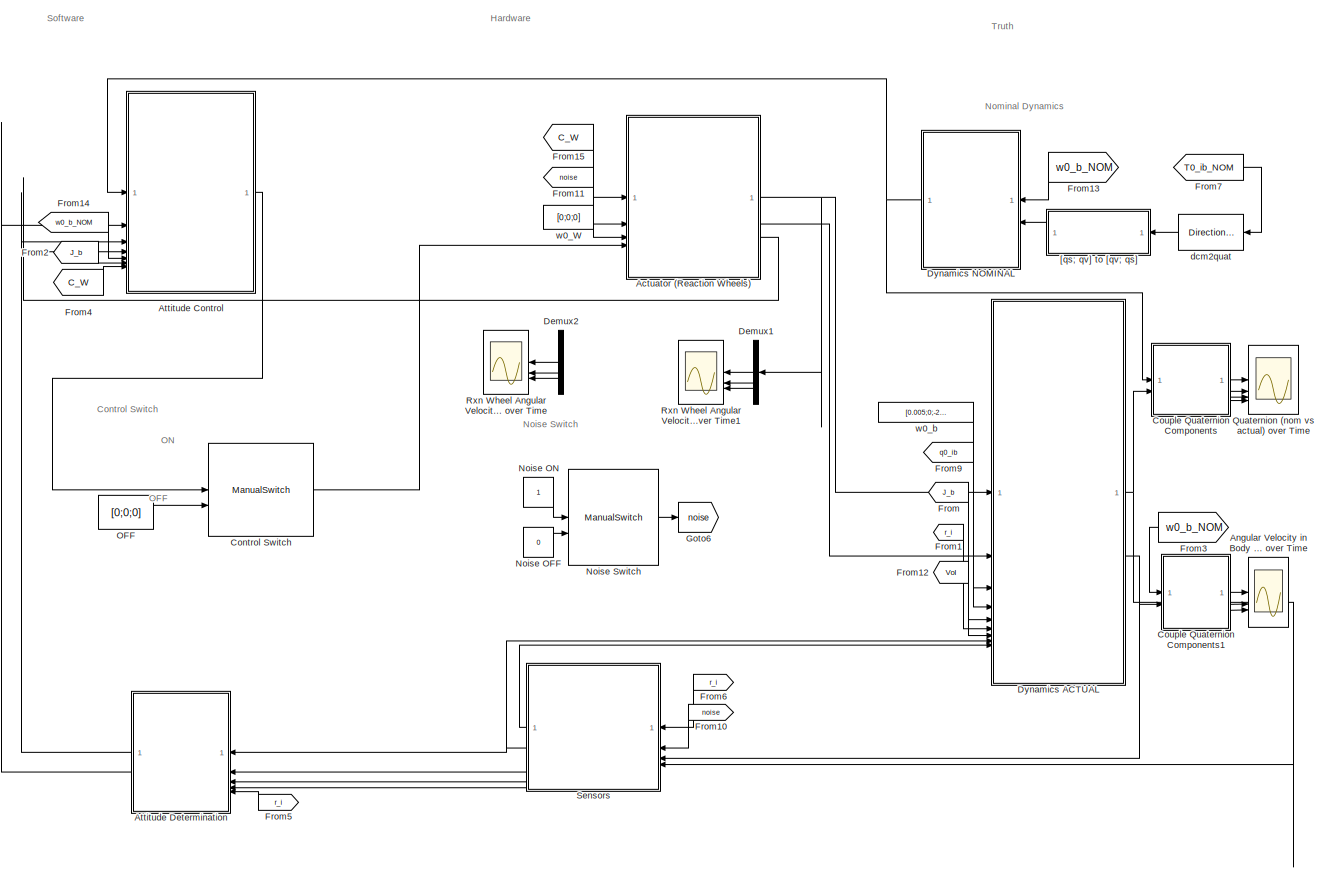
[diagram: root canvas - part 1/2, most of the canvas]
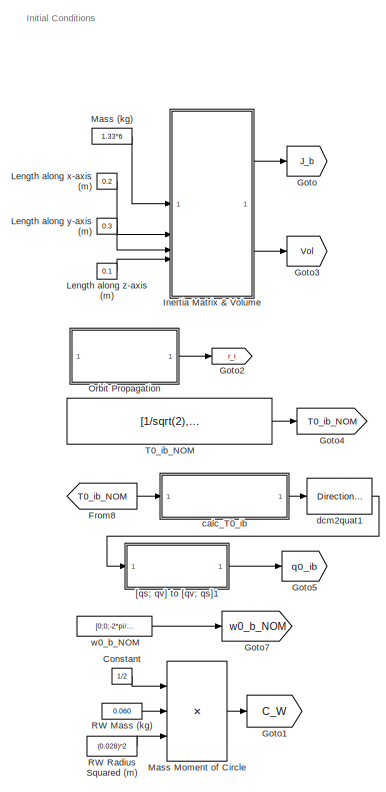
[diagram: root canvas - part 2/2, left side, full height]
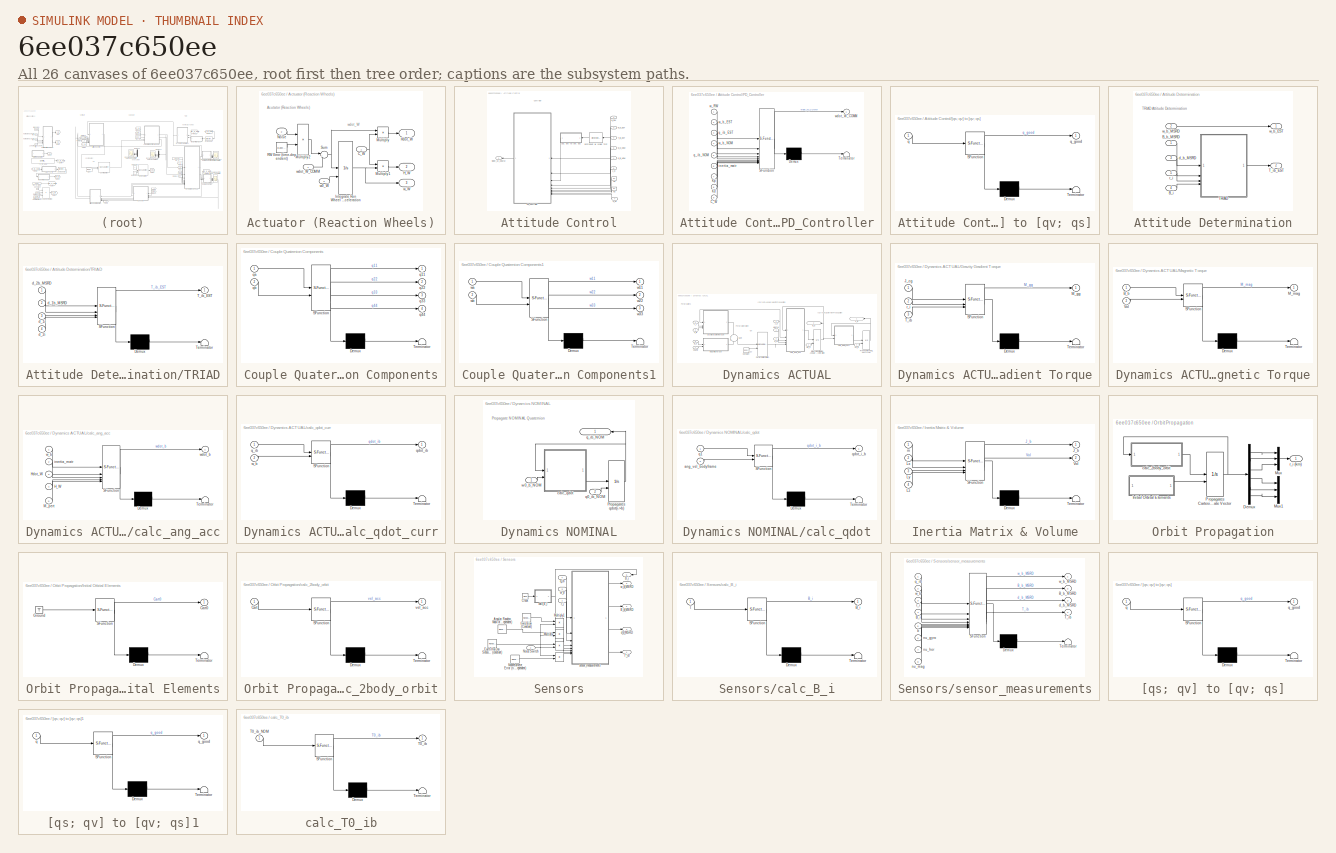
[diagram: thumbnail index - all 26 canvases of the model, root first then tree order]
MODEL slx_6ee037c650ee
KIND model
CONFIG AbsTol = auto
CONFIG EnableMultiTasking = off
CONFIG FixedStep = 100
CONFIG MaxStep = auto
CONFIG MinStep = auto
CONFIG RelTol = 1e-3
CONFIG SampleTimeConstraint = Unconstrained
CONFIG SolverName = VariableStepAuto
CONFIG StartTime = 0.0
CONFIG StopTime = 5370
BLOCK [SubSystem] Actuator (Reaction Wheels)
BLOCK [Inport] Actuator (Reaction Wheels)/C_W
BLOCK [Outport] Actuator (Reaction Wheels)/H_W
  Port = 2
  VectorParamsAs1DForOutWhenUnconnected = off
BLOCK [Outport] Actuator (Reaction Wheels)/Hdot_W
  VectorParamsAs1DForOutWhenUnconnected = off
BLOCK [Integrator] Actuator (Reaction Wheels)/Integrate Rxn Wheel Angular Acceleration
  ContinuousStateAttributes = 'ang_vel'
  InitialConditionSource = external
BLOCK [Product] Actuator (Reaction Wheels)/Multiply
BLOCK [Product] Actuator (Reaction Wheels)/Multiply1
BLOCK [Product] Actuator (Reaction Wheels)/Multiply2
BLOCK [Inport] Actuator (Reaction Wheels)/Noise 
  Port = 2
BLOCK [Reference] Actuator (Reaction Wheels)/RW Error (time-dependent)  REF=simulink/Sources/Band-Limited
White Noise
  SourceBlock = simulink/Sources/Band-Limited\nWhite Noise
  SourceType = Band-Limited White Noise.
BLOCK [Sum] Actuator (Reaction Wheels)/Sum
  Inputs = |++
BLOCK [Inport] Actuator (Reaction Wheels)/w0_W
  Port = 3
BLOCK [Outport] Actuator (Reaction Wheels)/w_W
  Port = 3
  VectorParamsAs1DForOutWhenUnconnected = off
BLOCK [Inport] Actuator (Reaction Wheels)/wdot_W_COMM
  Port = 4
BLOCK [Scope] Angular Velocity in Body Frame over Time
  Floating = off
  NumInputPorts = 3
  ScopeSpecificationString = Simulink.scopes.TimeScopeBlockCfg('CurrentConfiguration', extmgr.ConfigurationSet(extmgr.Configuration('Core','General UI',true),extmgr.Configuration('Core','Source UI',true),extmgr.Configuration('Sources','WiredSimulink',true),extmgr.Configuration('Visuals','Time Domain',true,'SerializedDisplays',{struct('MinYLimReal','-0.00567','MaxYLimReal','0.00619','YLabelReal','\omega_x (rad/s)','MinYLimMag'...<+2963ch>
BLOCK [SubSystem] Attitude Control
BLOCK [Inport] Attitude Control/C_W
  Port = 7
BLOCK [Inport] Attitude Control/J_b
  Port = 6
BLOCK [Constant] Attitude Control/Kd
  Value = .01
BLOCK [Constant] Attitude Control/Kp
  Value = .01
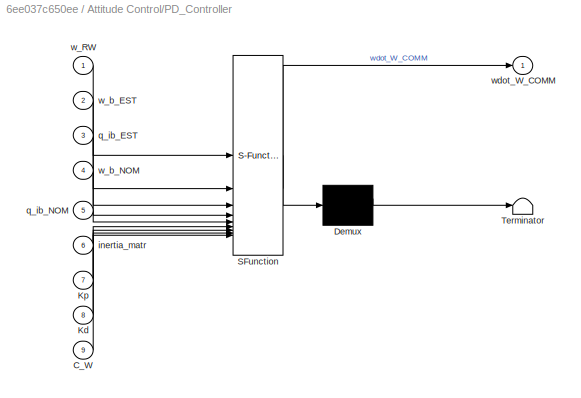
BLOCK [SubSystem] Attitude Control/PD_Controller
  ErrorFcn = Stateflow.Translate.translate
  PermitHierarchicalResolution = ExplicitOnly
  SFBlockType = MATLAB Function
  TreatAsAtomicUnit = on
BLOCK [Demux] Attitude Control/PD_Controller/ Demux 
  Outputs = 1
BLOCK [S-Function] Attitude Control/PD_Controller/ SFunction 
  EnableBusSupport = on
  FunctionName = sf_sfun
  PortCounts = [9 2]
  SFcnIsStateOwnerBlock = off
  SFunctionDeploymentMode = off
  Tag = Stateflow S-Function 5
BLOCK [Terminator] Attitude Control/PD_Controller/ Terminator 
BLOCK [Inport] Attitude Control/PD_Controller/C_W
  Port = 9
BLOCK [Inport] Attitude Control/PD_Controller/Kd
  Port = 8
BLOCK [Inport] Attitude Control/PD_Controller/Kp
  Port = 7
BLOCK [Inport] Attitude Control/PD_Controller/inertia_matr
  Port = 6
BLOCK [Inport] Attitude Control/PD_Controller/q_ib_EST
  Port = 3
BLOCK [Inport] Attitude Control/PD_Controller/q_ib_NOM
  Port = 5
BLOCK [Inport] Attitude Control/PD_Controller/w_RW
BLOCK [Inport] Attitude Control/PD_Controller/w_b_EST
  Port = 2
BLOCK [Inport] Attitude Control/PD_Controller/w_b_NOM
  Port = 4
BLOCK [Outport] Attitude Control/PD_Controller/wdot_W_COMM
  VectorParamsAs1DForOutWhenUnconnected = off
BLOCK [Inport] Attitude Control/T_ib_EST
  Port = 2
BLOCK [SubSystem] Attitude Control/[qs; qv] to [qv; qs]
  ErrorFcn = Stateflow.Translate.translate
  PermitHierarchicalResolution = ExplicitOnly
  SFBlockType = MATLAB Function
  TreatAsAtomicUnit = on
BLOCK [Demux] Attitude Control/[qs; qv] to [qv; qs]/ Demux 
  Outputs = 1
BLOCK [S-Function] Attitude Control/[qs; qv] to [qv; qs]/ SFunction 
  EnableBusSupport = on
  FunctionName = sf_sfun
  PortCounts = [1 2]
  SFcnIsStateOwnerBlock = off
  SFunctionDeploymentMode = off
  Tag = Stateflow S-Function 4
BLOCK [Terminator] Attitude Control/[qs; qv] to [qv; qs]/ Terminator 
BLOCK [Inport] Attitude Control/[qs; qv] to [qv; qs]/q
BLOCK [Outport] Attitude Control/[qs; qv] to [qv; qs]/q_good
  VectorParamsAs1DForOutWhenUnconnected = off
BLOCK [Reference] Attitude Control/dcm2quat w// scalar first  REF=sharedtransform/Direction Cosine Matrix 
to Quaternions
  SourceBlock = sharedtransform/Direction Cosine Matrix \nto Quaternions
  SourceType = DCM2Quaternion
BLOCK [Inport] Attitude Control/q_ib_NOM
BLOCK [Inport] Attitude Control/w_RW
  Port = 4
BLOCK [Inport] Attitude Control/w_b_EST
  Port = 3
BLOCK [Inport] Attitude Control/w_b_NOM
  Port = 5
BLOCK [Outport] Attitude Control/wdot_W_COMM
  VectorParamsAs1DForOutWhenUnconnected = off
BLOCK [SubSystem] Attitude Determination
BLOCK [Inport] Attitude Determination/B_b_MSRD
BLOCK [Inport] Attitude Determination/B_i
  Port = 4
BLOCK [SubSystem] Attitude Determination/TRIAD
  ErrorFcn = Stateflow.Translate.translate
  PermitHierarchicalResolution = ExplicitOnly
  SFBlockType = MATLAB Function
  TreatAsAtomicUnit = on
BLOCK [Demux] Attitude Determination/TRIAD/ Demux 
  Outputs = 1
BLOCK [S-Function] Attitude Determination/TRIAD/ SFunction 
  EnableBusSupport = on
  FunctionName = sf_sfun
  PortCounts = [4 2]
  SFcnIsStateOwnerBlock = off
  SFunctionDeploymentMode = off
  Tag = Stateflow S-Function 8
BLOCK [Terminator] Attitude Determination/TRIAD/ Terminator 
BLOCK [Outport] Attitude Determination/TRIAD/T_ib_EST
  VectorParamsAs1DForOutWhenUnconnected = off
BLOCK [Inport] Attitude Determination/TRIAD/d_1b_MSRD
  Port = 2
BLOCK [Inport] Attitude Determination/TRIAD/d_1i
  Port = 3
BLOCK [Inport] Attitude Determination/TRIAD/d_2b_MSRD
BLOCK [Inport] Attitude Determination/TRIAD/d_2i
  Port = 4
BLOCK [Outport] Attitude Determination/T_ib_EST
  Port = 2
  VectorParamsAs1DForOutWhenUnconnected = off
BLOCK [Inport] Attitude Determination/d_b_MSRD
  Port = 3
BLOCK [Inport] Attitude Determination/r_i
  Port = 5
BLOCK [Outport] Attitude Determination/w_b_EST
  VectorParamsAs1DForOutWhenUnconnected = off
BLOCK [Inport] Attitude Determination/w_b_MSRD
  Port = 2
BLOCK [Constant] Constant
  Value = 1/2
BLOCK [ManualSwitch] Control Switch
BLOCK [SubSystem] Couple Quaternion Components
  ErrorFcn = Stateflow.Translate.translate
  PermitHierarchicalResolution = ExplicitOnly
  SFBlockType = MATLAB Function
  TreatAsAtomicUnit = on
BLOCK [Demux] Couple Quaternion Components/ Demux 
  Outputs = 1
BLOCK [S-Function] Couple Quaternion Components/ SFunction 
  EnableBusSupport = on
  FunctionName = sf_sfun
  PortCounts = [2 5]
  SFcnIsStateOwnerBlock = off
  SFunctionDeploymentMode = off
  Tag = Stateflow S-Function 17
BLOCK [Terminator] Couple Quaternion Components/ Terminator 
BLOCK [Outport] Couple Quaternion Components/q11
  VectorParamsAs1DForOutWhenUnconnected = off
BLOCK [Outport] Couple Quaternion Components/q22
  Port = 2
  VectorParamsAs1DForOutWhenUnconnected = off
BLOCK [Outport] Couple Quaternion Components/q33
  Port = 3
  VectorParamsAs1DForOutWhenUnconnected = off
BLOCK [Outport] Couple Quaternion Components/q44
  Port = 4
  VectorParamsAs1DForOutWhenUnconnected = off
BLOCK [Inport] Couple Quaternion Components/qa
BLOCK [Inport] Couple Quaternion Components/qb
  Port = 2
BLOCK [SubSystem] Couple Quaternion Components1
  ErrorFcn = Stateflow.Translate.translate
  PermitHierarchicalResolution = ExplicitOnly
  SFBlockType = MATLAB Function
  TreatAsAtomicUnit = on
BLOCK [Demux] Couple Quaternion Components1/ Demux 
  Outputs = 1
BLOCK [S-Function] Couple Quaternion Components1/ SFunction 
  EnableBusSupport = on
  FunctionName = sf_sfun
  PortCounts = [2 4]
  SFcnIsStateOwnerBlock = off
  SFunctionDeploymentMode = off
  Tag = Stateflow S-Function 18
BLOCK [Terminator] Couple Quaternion Components1/ Terminator 
BLOCK [Outport] Couple Quaternion Components1/w11
  VectorParamsAs1DForOutWhenUnconnected = off
BLOCK [Outport] Couple Quaternion Components1/w22
  Port = 2
  VectorParamsAs1DForOutWhenUnconnected = off
BLOCK [Outport] Couple Quaternion Components1/w33
  Port = 3
  VectorParamsAs1DForOutWhenUnconnected = off
BLOCK [Inport] Couple Quaternion Components1/wa
BLOCK [Inport] Couple Quaternion Components1/wb
  Port = 2
BLOCK [Demux] Demux1
  NameLocation = top
  Outputs = 3
BLOCK [Demux] Demux2
  NameLocation = top
  Outputs = 3
BLOCK [SubSystem] Dynamics ACTUAL
BLOCK [Inport] Dynamics ACTUAL/B_b
  Port = 8
BLOCK [Constant] Dynamics ACTUAL/Constant
  Value = [0;0;0]
BLOCK [SubSystem] Dynamics ACTUAL/Gravity Gradient Torque
  ErrorFcn = Stateflow.Translate.translate
  PermitHierarchicalResolution = ExplicitOnly
  SFBlockType = MATLAB Function
  TreatAsAtomicUnit = on
BLOCK [Demux] Dynamics ACTUAL/Gravity Gradient Torque/ Demux 
  Outputs = 1
BLOCK [S-Function] Dynamics ACTUAL/Gravity Gradient Torque/ SFunction 
  EnableBusSupport = on
  FunctionName = sf_sfun
  PortCounts = [3 2]
  SFcnIsStateOwnerBlock = off
  SFunctionDeploymentMode = off
  Tag = Stateflow S-Function 14
BLOCK [Terminator] Dynamics ACTUAL/Gravity Gradient Torque/ Terminator 
BLOCK [Inport] Dynamics ACTUAL/Gravity Gradient Torque/J_cg
BLOCK [Outport] Dynamics ACTUAL/Gravity Gradient Torque/M_gg
  VectorParamsAs1DForOutWhenUnconnected = off
BLOCK [Inport] Dynamics ACTUAL/Gravity Gradient Torque/T_ib
  Port = 3
BLOCK [Inport] Dynamics ACTUAL/Gravity Gradient Torque/r_i
  Port = 2
BLOCK [Inport] Dynamics ACTUAL/H_W
  Port = 2
BLOCK [Inport] Dynamics ACTUAL/Hdot_W
BLOCK [Integrator] Dynamics ACTUAL/Integrate Estimated Angular Acceleration
  ContinuousStateAttributes = 'ang_vel'
  InitialConditionSource = external
BLOCK [Inport] Dynamics ACTUAL/J_b
  Port = 5
BLOCK [SubSystem] Dynamics ACTUAL/Magnetic Torque
  ErrorFcn = Stateflow.Translate.translate
  PermitHierarchicalResolution = ExplicitOnly
  SFBlockType = MATLAB Function
  TreatAsAtomicUnit = on
BLOCK [Demux] Dynamics ACTUAL/Magnetic Torque/ Demux 
  Outputs = 1
BLOCK [S-Function] Dynamics ACTUAL/Magnetic Torque/ SFunction 
  EnableBusSupport = on
  FunctionName = sf_sfun
  PortCounts = [2 2]
  SFcnIsStateOwnerBlock = off
  SFunctionDeploymentMode = off
  Tag = Stateflow S-Function 15
BLOCK [Terminator] Dynamics ACTUAL/Magnetic Torque/ Terminator 
BLOCK [Inport] Dynamics ACTUAL/Magnetic Torque/B_b
BLOCK [Outport] Dynamics ACTUAL/Magnetic Torque/M_mag
  VectorParamsAs1DForOutWhenUnconnected = off
BLOCK [Inport] Dynamics ACTUAL/Magnetic Torque/Vol
  Port = 2
BLOCK [ManualSwitch] Dynamics ACTUAL/Perturbation Switch
BLOCK [Integrator] Dynamics ACTUAL/Propagates qdot_curr (i->b)
  ContinuousStateAttributes = 'qdot_curr'
  InitialConditionSource = external
BLOCK [Sum] Dynamics ACTUAL/Sum
  Inputs = +||+
BLOCK [Inport] Dynamics ACTUAL/T_ib
  Port = 9
BLOCK [Inport] Dynamics ACTUAL/Volume
  Port = 7
BLOCK [SubSystem] Dynamics ACTUAL/calc_ang_acc
  ErrorFcn = Stateflow.Translate.translate
  PermitHierarchicalResolution = ExplicitOnly
  SFBlockType = MATLAB Function
  TreatAsAtomicUnit = on
BLOCK [Demux] Dynamics ACTUAL/calc_ang_acc/ Demux 
  Outputs = 1
BLOCK [S-Function] Dynamics ACTUAL/calc_ang_acc/ SFunction 
  EnableBusSupport = on
  FunctionName = sf_sfun
  PortCounts = [5 2]
  SFcnIsStateOwnerBlock = off
  SFunctionDeploymentMode = off
  Tag = Stateflow S-Function 1
BLOCK [Terminator] Dynamics ACTUAL/calc_ang_acc/ Terminator 
BLOCK [Inport] Dynamics ACTUAL/calc_ang_acc/H_W
  Port = 4
BLOCK [Inport] Dynamics ACTUAL/calc_ang_acc/Hdot_W
  Port = 3
BLOCK [Inport] Dynamics ACTUAL/calc_ang_acc/M_pert
  Port = 5
BLOCK [Inport] Dynamics ACTUAL/calc_ang_acc/inertia_matr
  Port = 2
BLOCK [Inport] Dynamics ACTUAL/calc_ang_acc/w_b
BLOCK [Outport] Dynamics ACTUAL/calc_ang_acc/wdot_b
  VectorParamsAs1DForOutWhenUnconnected = off
BLOCK [SubSystem] Dynamics ACTUAL/calc_qdot_curr
  ErrorFcn = Stateflow.Translate.translate
  PermitHierarchicalResolution = ExplicitOnly
  SFBlockType = MATLAB Function
  TreatAsAtomicUnit = on
BLOCK [Demux] Dynamics ACTUAL/calc_qdot_curr/ Demux 
  Outputs = 1
BLOCK [S-Function] Dynamics ACTUAL/calc_qdot_curr/ SFunction 
  EnableBusSupport = on
  FunctionName = sf_sfun
  PortCounts = [2 2]
  SFcnIsStateOwnerBlock = off
  SFunctionDeploymentMode = off
  Tag = Stateflow S-Function 2
BLOCK [Terminator] Dynamics ACTUAL/calc_qdot_curr/ Terminator 
BLOCK [Inport] Dynamics ACTUAL/calc_qdot_curr/q_ib
BLOCK [Outport] Dynamics ACTUAL/calc_qdot_curr/qdot_ib
  VectorParamsAs1DForOutWhenUnconnected = off
BLOCK [Inport] Dynamics ACTUAL/calc_qdot_curr/w_b
  Port = 2
BLOCK [Inport] Dynamics ACTUAL/q0_ib
  Port = 4
BLOCK [Outport] Dynamics ACTUAL/q_ib
  VectorParamsAs1DForOutWhenUnconnected = off
BLOCK [Inport] Dynamics ACTUAL/r_i
  Port = 6
BLOCK [Inport] Dynamics ACTUAL/w0_b
  Port = 3
BLOCK [Outport] Dynamics ACTUAL/w_b
  Port = 2
  VectorParamsAs1DForOutWhenUnconnected = off
BLOCK [SubSystem] Dynamics NOMINAL
BLOCK [Integrator] Dynamics NOMINAL/Propagates qdot(i->b)
  ContinuousStateAttributes = 'qdot_curr'
  InitialConditionSource = external
BLOCK [SubSystem] Dynamics NOMINAL/calc_qdot
  ErrorFcn = Stateflow.Translate.translate
  PermitHierarchicalResolution = ExplicitOnly
  SFBlockType = MATLAB Function
  TreatAsAtomicUnit = on
BLOCK [Demux] Dynamics NOMINAL/calc_qdot/ Demux 
  Outputs = 1
BLOCK [S-Function] Dynamics NOMINAL/calc_qdot/ SFunction 
  EnableBusSupport = on
  FunctionName = sf_sfun
  PortCounts = [2 2]
  SFcnIsStateOwnerBlock = off
  SFunctionDeploymentMode = off
  Tag = Stateflow S-Function 12
BLOCK [Terminator] Dynamics NOMINAL/calc_qdot/ Terminator 
BLOCK [Inport] Dynamics NOMINAL/calc_qdot/ang_vel_bodyframe
  Port = 2
BLOCK [Inport] Dynamics NOMINAL/calc_qdot/q1
BLOCK [Outport] Dynamics NOMINAL/calc_qdot/qdot_i_b
  VectorParamsAs1DForOutWhenUnconnected = off
BLOCK [Inport] Dynamics NOMINAL/q0_ib_NOM
  Port = 2
BLOCK [Outport] Dynamics NOMINAL/q_ib_NOM
  VectorParamsAs1DForOutWhenUnconnected = off
BLOCK [Inport] Dynamics NOMINAL/w0_b_NOM
BLOCK [From] From
  GotoTag = J_b
BLOCK [From] From1
  GotoTag = r_i
BLOCK [From] From10
  GotoTag = noise
BLOCK [From] From11
  GotoTag = noise
BLOCK [From] From12
  GotoTag = Vol
BLOCK [From] From13
  GotoTag = w0_b_NOM
BLOCK [From] From14
  GotoTag = w0_b_NOM
BLOCK [From] From15
  GotoTag = C_W
BLOCK [From] From2
  GotoTag = J_b
BLOCK [From] From3
  GotoTag = w0_b_NOM
BLOCK [From] From4
  GotoTag = C_W
BLOCK [From] From5
  GotoTag = r_i
BLOCK [From] From6
  GotoTag = r_i
BLOCK [From] From7
  GotoTag = T0_ib_NOM
BLOCK [From] From8
  GotoTag = T0_ib_NOM
BLOCK [From] From9
  GotoTag = q0_ib
BLOCK [Goto] Goto
  GotoTag = J_b
BLOCK [Goto] Goto1
  GotoTag = C_W
BLOCK [Goto] Goto2
  GotoTag = r_i
BLOCK [Goto] Goto3
  GotoTag = Vol
BLOCK [Goto] Goto4
  GotoTag = T0_ib_NOM
BLOCK [Goto] Goto5
  GotoTag = q0_ib
BLOCK [Goto] Goto6
  GotoTag = noise
BLOCK [Goto] Goto7
  GotoTag = w0_b_NOM
BLOCK [SubSystem] Inertia Matrix & Volume
  ErrorFcn = Stateflow.Translate.translate
  PermitHierarchicalResolution = ExplicitOnly
  SFBlockType = MATLAB Function
  TreatAsAtomicUnit = on
BLOCK [Demux] Inertia Matrix & Volume/ Demux 
  Outputs = 1
BLOCK [S-Function] Inertia Matrix & Volume/ SFunction 
  EnableBusSupport = on
  FunctionName = sf_sfun
  PortCounts = [4 3]
  SFcnIsStateOwnerBlock = off
  SFunctionDeploymentMode = off
  Tag = Stateflow S-Function 16
BLOCK [Terminator] Inertia Matrix & Volume/ Terminator 
BLOCK [Outport] Inertia Matrix & Volume/J_b
  VectorParamsAs1DForOutWhenUnconnected = off
BLOCK [Inport] Inertia Matrix & Volume/Lx
  Port = 2
BLOCK [Inport] Inertia Matrix & Volume/Ly
  Port = 3
BLOCK [Inport] Inertia Matrix & Volume/Lz
  Port = 4
BLOCK [Outport] Inertia Matrix & Volume/Vol
  Port = 2
  VectorParamsAs1DForOutWhenUnconnected = off
BLOCK [Inport] Inertia Matrix & Volume/m
BLOCK [Constant] Length along x-axis (m)
  Value = 0.2
BLOCK [Constant] Length along y-axis (m)
  Value = 0.3
BLOCK [Constant] Length along z-axis (m)
  Value = 0.1
BLOCK [Constant] Mass (kg)
  Value = 1.33*6
BLOCK [Product] Mass Moment of Circle
  Inputs = 3
BLOCK [Constant] Noise OFF
  Value = 0
BLOCK [Constant] Noise ON
BLOCK [ManualSwitch] Noise Switch
BLOCK [Constant] OFF
  Value = [0;0;0]
BLOCK [SubSystem] Orbit Propagation
BLOCK [Demux] Orbit Propagation/Demux
  Outputs = 6
BLOCK [SubSystem] Orbit Propagation/Initial Orbital Elements
  ErrorFcn = Stateflow.Translate.translate
  PermitHierarchicalResolution = ExplicitOnly
  SFBlockType = MATLAB Function
  TreatAsAtomicUnit = on
BLOCK [Demux] Orbit Propagation/Initial Orbital Elements/ Demux 
  Outputs = 1
BLOCK [Ground] Orbit Propagation/Initial Orbital Elements/ Ground 
BLOCK [S-Function] Orbit Propagation/Initial Orbital Elements/ SFunction 
  EnableBusSupport = on
  FunctionName = sf_sfun
  PortCounts = [1 2]
  SFcnIsStateOwnerBlock = off
  SFunctionDeploymentMode = off
  Tag = Stateflow S-Function 3
BLOCK [Terminator] Orbit Propagation/Initial Orbital Elements/ Terminator 
BLOCK [Outport] Orbit Propagation/Initial Orbital Elements/Cart0
  VectorParamsAs1DForOutWhenUnconnected = off
BLOCK [Mux] Orbit Propagation/Mux
  DisplayOption = bar
  Inputs = 3
BLOCK [Mux] Orbit Propagation/Mux1
  DisplayOption = bar
  Inputs = 3
BLOCK [Integrator] Orbit Propagation/Propagates Cartesian State Vector
  ContinuousStateAttributes = 'qdot_curr'
  InitialConditionSource = external
BLOCK [SubSystem] Orbit Propagation/calc_2body_orbit
  ErrorFcn = Stateflow.Translate.translate
  PermitHierarchicalResolution = ExplicitOnly
  SFBlockType = MATLAB Function
  TreatAsAtomicUnit = on
BLOCK [Demux] Orbit Propagation/calc_2body_orbit/ Demux 
  Outputs = 1
BLOCK [S-Function] Orbit Propagation/calc_2body_orbit/ SFunction 
  EnableBusSupport = on
  FunctionName = sf_sfun
  PortCounts = [1 2]
  SFcnIsStateOwnerBlock = off
  SFunctionDeploymentMode = off
  Tag = Stateflow S-Function 10
BLOCK [Terminator] Orbit Propagation/calc_2body_orbit/ Terminator 
BLOCK [Inport] Orbit Propagation/calc_2body_orbit/Cart
BLOCK [Outport] Orbit Propagation/calc_2body_orbit/vel_acc
  VectorParamsAs1DForOutWhenUnconnected = off
BLOCK [Outport] Orbit Propagation/r_i (km)
  VectorParamsAs1DForOutWhenUnconnected = off
BLOCK [Scope] Quaternion (nom vs actual) over Time
  Floating = off
  NumInputPorts = 4
  ScopeSpecificationString = Simulink.scopes.TimeScopeBlockCfg('CurrentConfiguration', extmgr.ConfigurationSet(extmgr.Configuration('Core','General UI',true),extmgr.Configuration('Core','Source UI',true),extmgr.Configuration('Sources','WiredSimulink',true,'DataLoggingVariableName','ScopeData1'),extmgr.Configuration('Visuals','Time Domain',true,'SerializedDisplays',{struct('MinYLimReal','-0.49195','MaxYLimReal','0.49311','YLab...<+3752ch>
BLOCK [Constant] RW Mass (kg)
  Value = 0.060
BLOCK [Constant] RW Radius Squared (m)
  Value = (0.028)^2
BLOCK [Scope] Rxn Wheel Angular Velocity in Body Frame over Time
  Floating = off
  NameLocation = top
  NumInputPorts = 3
  ScopeSpecificationString = Simulink.scopes.TimeScopeBlockCfg('CurrentConfiguration', extmgr.ConfigurationSet(extmgr.Configuration('Core','General UI',true),extmgr.Configuration('Core','Source UI',true),extmgr.Configuration('Sources','WiredSimulink',true,'DataLoggingVariableName','ScopeData1'),extmgr.Configuration('Visuals','Time Domain',true,'SerializedDisplays',{struct('MinYLimReal','-29.58174','MaxYLimReal','32.89737','YL...<+2798ch>
BLOCK [Scope] Rxn Wheel Angular Velocity in Body Frame over Time1
  Floating = off
  NameLocation = top
  NumInputPorts = 3
  ScopeSpecificationString = Simulink.scopes.TimeScopeBlockCfg('CurrentConfiguration', extmgr.ConfigurationSet(extmgr.Configuration('Core','General UI',true),extmgr.Configuration('Core','Source UI',true),extmgr.Configuration('Sources','WiredSimulink',true,'DataLoggingVariableName','ScopeData1'),extmgr.Configuration('Visuals','Time Domain',true,'SerializedDisplays',{struct('MinYLimReal','-0.000043','MaxYLimReal','0.000047','YL...<+3102ch>
BLOCK [SubSystem] Sensors
BLOCK [Product] Sensors/ 
BLOCK [Product] Sensors/  
BLOCK [Reference] Sensors/Angular Random Walk of gyro (time-dependent)  REF=simulink/Sources/Band-Limited
White Noise
  SourceBlock = simulink/Sources/Band-Limited\nWhite Noise
  SourceType = Band-Limited White Noise.
BLOCK [Outport] Sensors/B_b_MSRD
  Port = 2
  VectorParamsAs1DForOutWhenUnconnected = off
BLOCK [Outport] Sensors/B_i
  Port = 5
  VectorParamsAs1DForOutWhenUnconnected = off
BLOCK [Clock] Sensors/Clock
BLOCK [RandomNumber] Sensors/Earth Horizon Sensor error (constant)
  Seed = 785
  Variance = (0.25*pi/180)^2
BLOCK [RandomNumber] Sensors/Gyro Bias (Constant)
  Variance = (.01*pi/180)^2*[1;1;1]
BLOCK [Reference] Sensors/Magnetometer Error (time-dependent)  REF=simulink/Sources/Band-Limited
White Noise
  SourceBlock = simulink/Sources/Band-Limited\nWhite Noise
  SourceType = Band-Limited White Noise.
BLOCK [Product] Sensors/Multiply
BLOCK [Product] Sensors/Multiply1
BLOCK [Inport] Sensors/Noise Switch
  Port = 2
BLOCK [Outport] Sensors/T_ib
  VectorParamsAs1DForOutWhenUnconnected = off
BLOCK [SubSystem] Sensors/calc_B_i
  ErrorFcn = Stateflow.Translate.translate
  PermitHierarchicalResolution = ExplicitOnly
  SFBlockType = MATLAB Function
  TreatAsAtomicUnit = on
BLOCK [Demux] Sensors/calc_B_i/ Demux 
  Outputs = 1
BLOCK [S-Function] Sensors/calc_B_i/ SFunction 
  EnableBusSupport = on
  FunctionName = sf_sfun
  PortCounts = [1 2]
  SFcnIsStateOwnerBlock = off
  SFunctionDeploymentMode = off
  Tag = Stateflow S-Function 7
BLOCK [Terminator] Sensors/calc_B_i/ Terminator 
BLOCK [Outport] Sensors/calc_B_i/B_i
  VectorParamsAs1DForOutWhenUnconnected = off
BLOCK [Inport] Sensors/calc_B_i/t
BLOCK [Outport] Sensors/d_b_MSRD
  Port = 4
  VectorParamsAs1DForOutWhenUnconnected = off
BLOCK [Inport] Sensors/q_ib
  Port = 4
BLOCK [Inport] Sensors/r_i
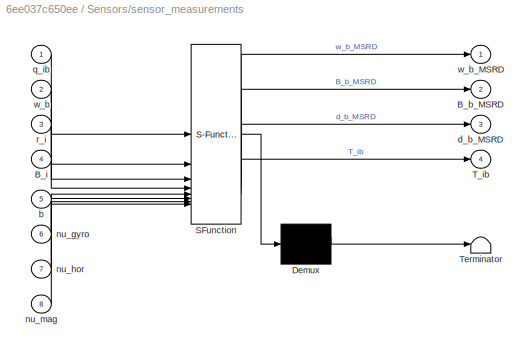
BLOCK [SubSystem] Sensors/sensor_measurements
  ErrorFcn = Stateflow.Translate.translate
  PermitHierarchicalResolution = ExplicitOnly
  SFBlockType = MATLAB Function
  TreatAsAtomicUnit = on
BLOCK [Demux] Sensors/sensor_measurements/ Demux 
  Outputs = 1
BLOCK [S-Function] Sensors/sensor_measurements/ SFunction 
  EnableBusSupport = on
  FunctionName = sf_sfun
  PortCounts = [8 5]
  SFcnIsStateOwnerBlock = off
  SFunctionDeploymentMode = off
  Tag = Stateflow S-Function 6
BLOCK [Terminator] Sensors/sensor_measurements/ Terminator 
BLOCK [Outport] Sensors/sensor_measurements/B_b_MSRD
  Port = 2
  VectorParamsAs1DForOutWhenUnconnected = off
BLOCK [Inport] Sensors/sensor_measurements/B_i
  Port = 4
BLOCK [Outport] Sensors/sensor_measurements/T_ib
  Port = 4
  VectorParamsAs1DForOutWhenUnconnected = off
BLOCK [Inport] Sensors/sensor_measurements/b
  Port = 5
BLOCK [Outport] Sensors/sensor_measurements/d_b_MSRD
  Port = 3
  VectorParamsAs1DForOutWhenUnconnected = off
BLOCK [Inport] Sensors/sensor_measurements/nu_gyro
  Port = 6
BLOCK [Inport] Sensors/sensor_measurements/nu_hor
  Port = 7
BLOCK [Inport] Sensors/sensor_measurements/nu_mag
  Port = 8
BLOCK [Inport] Sensors/sensor_measurements/q_ib
BLOCK [Inport] Sensors/sensor_measurements/r_i
  Port = 3
BLOCK [Inport] Sensors/sensor_measurements/w_b
  Port = 2
BLOCK [Outport] Sensors/sensor_measurements/w_b_MSRD
  VectorParamsAs1DForOutWhenUnconnected = off
BLOCK [Inport] Sensors/w_b
  Port = 3
BLOCK [Outport] Sensors/w_b_MSRD
  Port = 3
  VectorParamsAs1DForOutWhenUnconnected = off
BLOCK [Constant] T0_ib_NOM
  Value = [1/sqrt(2), 0, -1/sqrt(2); 0, 1, 0; 1/sqrt(2), 0, 1/sqrt(2)]
BLOCK [SubSystem] [qs; qv] to [qv; qs]
  ErrorFcn = Stateflow.Translate.translate
  PermitHierarchicalResolution = ExplicitOnly
  SFBlockType = MATLAB Function
  TreatAsAtomicUnit = on
BLOCK [Demux] [qs; qv] to [qv; qs]/ Demux 
  Outputs = 1
BLOCK [S-Function] [qs; qv] to [qv; qs]/ SFunction 
  EnableBusSupport = on
  FunctionName = sf_sfun
  PortCounts = [1 2]
  SFcnIsStateOwnerBlock = off
  SFunctionDeploymentMode = off
  Tag = Stateflow S-Function 9
BLOCK [Terminator] [qs; qv] to [qv; qs]/ Terminator 
BLOCK [Inport] [qs; qv] to [qv; qs]/q
BLOCK [Outport] [qs; qv] to [qv; qs]/q_good
  VectorParamsAs1DForOutWhenUnconnected = off
BLOCK [SubSystem] [qs; qv] to [qv; qs]1
  ErrorFcn = Stateflow.Translate.translate
  PermitHierarchicalResolution = ExplicitOnly
  SFBlockType = MATLAB Function
  TreatAsAtomicUnit = on
BLOCK [Demux] [qs; qv] to [qv; qs]1/ Demux 
  Outputs = 1
BLOCK [S-Function] [qs; qv] to [qv; qs]1/ SFunction 
  EnableBusSupport = on
  FunctionName = sf_sfun
  PortCounts = [1 2]
  SFcnIsStateOwnerBlock = off
  SFunctionDeploymentMode = off
  Tag = Stateflow S-Function 13
BLOCK [Terminator] [qs; qv] to [qv; qs]1/ Terminator 
BLOCK [Inport] [qs; qv] to [qv; qs]1/q
BLOCK [Outport] [qs; qv] to [qv; qs]1/q_good
  VectorParamsAs1DForOutWhenUnconnected = off
BLOCK [SubSystem] calc_T0_ib
  ErrorFcn = Stateflow.Translate.translate
  PermitHierarchicalResolution = ExplicitOnly
  SFBlockType = MATLAB Function
  TreatAsAtomicUnit = on
BLOCK [Demux] calc_T0_ib/ Demux 
  Outputs = 1
BLOCK [S-Function] calc_T0_ib/ SFunction 
  EnableBusSupport = on
  FunctionName = sf_sfun
  PortCounts = [1 2]
  SFcnIsStateOwnerBlock = off
  SFunctionDeploymentMode = off
  Tag = Stateflow S-Function 11
BLOCK [Terminator] calc_T0_ib/ Terminator 
BLOCK [Outport] calc_T0_ib/T0_ib
  VectorParamsAs1DForOutWhenUnconnected = off
BLOCK [Inport] calc_T0_ib/T0_ib_NOM
BLOCK [Reference] dcm2quat  REF=sharedtransform/Direction Cosine Matrix 
to Quaternions
  SourceBlock = sharedtransform/Direction Cosine Matrix \nto Quaternions
  SourceType = DCM2Quaternion
BLOCK [Reference] dcm2quat1  REF=sharedtransform/Direction Cosine Matrix 
to Quaternions
  SourceBlock = sharedtransform/Direction Cosine Matrix \nto Quaternions
  SourceType = DCM2Quaternion
BLOCK [Constant] w0_W
  Value = [0;0;0]
BLOCK [Constant] w0_b
  Value = [0.005;0;-2*pi/5370]
BLOCK [Constant] w0_b_NOM
  Value = [0;0;-2*pi/5370]
ANNOTATION (root): OFF
ANNOTATION (root): ON
ANNOTATION (root): Control Switch
ANNOTATION (root): Noise Switch
ANNOTATION (root): Nominal Dynamics
ANNOTATION (root): Hardware
ANNOTATION (root): Initial Conditions
ANNOTATION (root): Software
ANNOTATION (root): Truth
ANNOTATION Actuator (Reaction Wheels): wdot_W
ANNOTATION Actuator (Reaction Wheels): Acutator (Reaction Wheels)
ANNOTATION Attitude Control: Controller
ANNOTATION Attitude Determination: TRIAD Attitude Determination
ANNOTATION Dynamics ACTUAL: (Current) Angular Velocity Propagation
ANNOTATION Dynamics ACTUAL: (Current) Quaternion Propagation
ANNOTATION Dynamics ACTUAL: ON
ANNOTATION Dynamics ACTUAL: OFF
ANNOTATION Dynamics ACTUAL: Perturbation Switch
ANNOTATION Dynamics ACTUAL: Perturbations
ANNOTATION Dynamics NOMINAL: Propagate NOMINAL Quaternion
NET Actuator (Reaction Wheels)/C_W:1 -> Actuator (Reaction Wheels)/Multiply1:1, Actuator (Reaction Wheels)/Multiply:2
NET Actuator (Reaction Wheels)/Integrate Rxn Wheel Angular Acceleration:1 -> Actuator (Reaction Wheels)/Multiply1:2, Actuator (Reaction Wheels)/w_W:1
LINE Actuator (Reaction Wheels)/Multiply1:1 -> Actuator (Reaction Wheels)/H_W:1
LINE Actuator (Reaction Wheels)/Multiply2:1 -> Actuator (Reaction Wheels)/Sum:1
LINE Actuator (Reaction Wheels)/Multiply:1 -> Actuator (Reaction Wheels)/Hdot_W:1
LINE Actuator (Reaction Wheels)/Noise :1 -> Actuator (Reaction Wheels)/Multiply2:1
LINE Actuator (Reaction Wheels)/RW Error (time-dependent):1 -> Actuator (Reaction Wheels)/Multiply2:2
NET Actuator (Reaction Wheels)/Sum:1 -> Actuator (Reaction Wheels)/Integrate Rxn Wheel Angular Acceleration:1, Actuator (Reaction Wheels)/Multiply:1
LINE Actuator (Reaction Wheels)/w0_W:1 -> Actuator (Reaction Wheels)/Integrate Rxn Wheel Angular Acceleration:2
LINE Actuator (Reaction Wheels)/wdot_W_COMM:1 -> Actuator (Reaction Wheels)/Sum:2
NET Actuator (Reaction Wheels):1 -> Demux1:1, Dynamics ACTUAL:1
LINE Actuator (Reaction Wheels):2 -> Dynamics ACTUAL:2
LINE Actuator (Reaction Wheels):3 -> Attitude Control:4
LINE Attitude Control/C_W:1 -> Attitude Control/PD_Controller:9
LINE Attitude Control/J_b:1 -> Attitude Control/PD_Controller:6
LINE Attitude Control/Kd:1 -> Attitude Control/PD_Controller:8
LINE Attitude Control/Kp:1 -> Attitude Control/PD_Controller:7
LINE Attitude Control/PD_Controller:1 -> Attitude Control/wdot_W_COMM:1
LINE Attitude Control/T_ib_EST:1 -> Attitude Control/dcm2quat w// scalar first:1
LINE Attitude Control/[qs; qv] to [qv; qs]:1 -> Attitude Control/PD_Controller:3
LINE Attitude Control/dcm2quat w// scalar first:1 -> Attitude Control/[qs; qv] to [qv; qs]:1
LINE Attitude Control/q_ib_NOM:1 -> Attitude Control/PD_Controller:5
LINE Attitude Control/w_RW:1 -> Attitude Control/PD_Controller:1
LINE Attitude Control/w_b_EST:1 -> Attitude Control/PD_Controller:2
LINE Attitude Control/w_b_NOM:1 -> Attitude Control/PD_Controller:4
LINE Attitude Control:1 -> Control Switch:1
LINE Attitude Determination/B_b_MSRD:1 -> Attitude Determination/TRIAD:1
LINE Attitude Determination/B_i:1 -> Attitude Determination/TRIAD:4
LINE Attitude Determination/TRIAD:1 -> Attitude Determination/T_ib_EST:1
LINE Attitude Determination/d_b_MSRD:1 -> Attitude Determination/TRIAD:2
LINE Attitude Determination/r_i:1 -> Attitude Determination/TRIAD:3
LINE Attitude Determination/w_b_MSRD:1 -> Attitude Determination/w_b_EST:1
LINE Attitude Determination:1 -> Attitude Control:3
LINE Attitude Determination:2 -> Attitude Control:2
LINE Constant:1 -> Mass Moment of Circle:1
LINE Control Switch:1 -> Actuator (Reaction Wheels):4
LINE Couple Quaternion Components1:1 -> Angular Velocity in Body Frame over Time:1
LINE Couple Quaternion Components1:2 -> Angular Velocity in Body Frame over Time:2
LINE Couple Quaternion Components1:3 -> Angular Velocity in Body Frame over Time:3
LINE Couple Quaternion Components:1 -> Quaternion (nom vs actual) over Time:1
LINE Couple Quaternion Components:2 -> Quaternion (nom vs actual) over Time:2
LINE Couple Quaternion Components:3 -> Quaternion (nom vs actual) over Time:3
LINE Couple Quaternion Components:4 -> Quaternion (nom vs actual) over Time:4
LINE Demux1:1 -> Rxn Wheel Angular Velocity in Body Frame over Time1:1
LINE Demux1:2 -> Rxn Wheel Angular Velocity in Body Frame over Time1:2
LINE Demux1:3 -> Rxn Wheel Angular Velocity in Body Frame over Time1:3
LINE Demux2:1 -> Rxn Wheel Angular Velocity in Body Frame over Time:1
LINE Demux2:2 -> Rxn Wheel Angular Velocity in Body Frame over Time:2
LINE Demux2:3 -> Rxn Wheel Angular Velocity in Body Frame over Time:3
LINE Dynamics ACTUAL/B_b:1 -> Dynamics ACTUAL/Magnetic Torque:1
LINE Dynamics ACTUAL/Constant:1 -> Dynamics ACTUAL/Perturbation Switch:2
LINE Dynamics ACTUAL/Gravity Gradient Torque:1 -> Dynamics ACTUAL/Sum:1
LINE Dynamics ACTUAL/H_W:1 -> Dynamics ACTUAL/calc_ang_acc:4
LINE Dynamics ACTUAL/Hdot_W:1 -> Dynamics ACTUAL/calc_ang_acc:3
NET Dynamics ACTUAL/Integrate Estimated Angular Acceleration:1 -> Dynamics ACTUAL/calc_ang_acc:1, Dynamics ACTUAL/calc_qdot_curr:2, Dynamics ACTUAL/w_b:1
NET Dynamics ACTUAL/J_b:1 -> Dynamics ACTUAL/Gravity Gradient Torque:1, Dynamics ACTUAL/calc_ang_acc:2
LINE Dynamics ACTUAL/Magnetic Torque:1 -> Dynamics ACTUAL/Sum:2
LINE Dynamics ACTUAL/Perturbation Switch:1 -> Dynamics ACTUAL/calc_ang_acc:5
NET Dynamics ACTUAL/Propagates qdot_curr (i->b):1 -> Dynamics ACTUAL/calc_qdot_curr:1, Dynamics ACTUAL/q_ib:1
LINE Dynamics ACTUAL/Sum:1 -> Dynamics ACTUAL/Perturbation Switch:1
LINE Dynamics ACTUAL/T_ib:1 -> Dynamics ACTUAL/Gravity Gradient Torque:3
LINE Dynamics ACTUAL/Volume:1 -> Dynamics ACTUAL/Magnetic Torque:2
LINE Dynamics ACTUAL/calc_ang_acc:1 -> Dynamics ACTUAL/Integrate Estimated Angular Acceleration:1
LINE Dynamics ACTUAL/calc_qdot_curr:1 -> Dynamics ACTUAL/Propagates qdot_curr (i->b):1
LINE Dynamics ACTUAL/q0_ib:1 -> Dynamics ACTUAL/Propagates qdot_curr (i->b):2
LINE Dynamics ACTUAL/r_i:1 -> Dynamics ACTUAL/Gravity Gradient Torque:2
LINE Dynamics ACTUAL/w0_b:1 -> Dynamics ACTUAL/Integrate Estimated Angular Acceleration:2
NET Dynamics ACTUAL:1 -> Couple Quaternion Components:2, Sensors:4
NET Dynamics ACTUAL:2 -> Couple Quaternion Components1:2, Sensors:3
NET Dynamics NOMINAL/Propagates qdot(i->b):1 -> Dynamics NOMINAL/calc_qdot:1, Dynamics NOMINAL/q_ib_NOM:1
LINE Dynamics NOMINAL/calc_qdot:1 -> Dynamics NOMINAL/Propagates qdot(i->b):1
LINE Dynamics NOMINAL/q0_ib_NOM:1 -> Dynamics NOMINAL/Propagates qdot(i->b):2
LINE Dynamics NOMINAL/w0_b_NOM:1 -> Dynamics NOMINAL/calc_qdot:2
NET Dynamics NOMINAL:1 -> Attitude Control:1, Couple Quaternion Components:1
LINE From10:1 -> Sensors:2
LINE From11:1 -> Actuator (Reaction Wheels):2
LINE From12:1 -> Dynamics ACTUAL:7
LINE From13:1 -> Dynamics NOMINAL:1
LINE From14:1 -> Attitude Control:5
LINE From15:1 -> Actuator (Reaction Wheels):1
LINE From1:1 -> Dynamics ACTUAL:6
LINE From2:1 -> Attitude Control:6
LINE From3:1 -> Couple Quaternion Components1:1
LINE From4:1 -> Attitude Control:7
LINE From5:1 -> Attitude Determination:5
LINE From6:1 -> Sensors:1
LINE From7:1 -> dcm2quat:1
LINE From8:1 -> calc_T0_ib:1
LINE From9:1 -> Dynamics ACTUAL:4
LINE From:1 -> Dynamics ACTUAL:5
LINE Inertia Matrix & Volume:1 -> Goto:1
LINE Inertia Matrix & Volume:2 -> Goto3:1
LINE Length along x-axis (m):1 -> Inertia Matrix & Volume:2
LINE Length along y-axis (m):1 -> Inertia Matrix & Volume:3
LINE Length along z-axis (m):1 -> Inertia Matrix & Volume:4
LINE Mass (kg):1 -> Inertia Matrix & Volume:1
LINE Mass Moment of Circle:1 -> Goto1:1
LINE Noise OFF:1 -> Noise Switch:2
LINE Noise ON:1 -> Noise Switch:1
LINE Noise Switch:1 -> Goto6:1
LINE OFF:1 -> Control Switch:2
LINE Orbit Propagation/Demux:1 -> Orbit Propagation/Mux:1
LINE Orbit Propagation/Demux:2 -> Orbit Propagation/Mux:2
LINE Orbit Propagation/Demux:3 -> Orbit Propagation/Mux:3
LINE Orbit Propagation/Demux:4 -> Orbit Propagation/Mux1:1
LINE Orbit Propagation/Demux:5 -> Orbit Propagation/Mux1:2
LINE Orbit Propagation/Demux:6 -> Orbit Propagation/Mux1:3
LINE Orbit Propagation/Initial Orbital Elements:1 -> Orbit Propagation/Propagates Cartesian State Vector:2
LINE Orbit Propagation/Mux:1 -> Orbit Propagation/r_i (km):1
NET Orbit Propagation/Propagates Cartesian State Vector:1 -> Orbit Propagation/Demux:1, Orbit Propagation/calc_2body_orbit:1
LINE Orbit Propagation/calc_2body_orbit:1 -> Orbit Propagation/Propagates Cartesian State Vector:1
LINE Orbit Propagation:1 -> Goto2:1
LINE RW Mass (kg):1 -> Mass Moment of Circle:2
LINE RW Radius Squared (m):1 -> Mass Moment of Circle:3
LINE Sensors/  :1 -> Sensors/sensor_measurements:8
LINE Sensors/ :1 -> Sensors/sensor_measurements:7
LINE Sensors/Angular Random Walk of gyro (time-dependent):1 -> Sensors/Multiply:1
LINE Sensors/Clock:1 -> Sensors/calc_B_i:1
LINE Sensors/Earth Horizon Sensor error (constant):1 -> Sensors/ :1
LINE Sensors/Gyro Bias (Constant):1 -> Sensors/Multiply1:1
LINE Sensors/Magnetometer Error (time-dependent):1 -> Sensors/  :2
LINE Sensors/Multiply1:1 -> Sensors/sensor_measurements:5
LINE Sensors/Multiply:1 -> Sensors/sensor_measurements:6
NET Sensors/Noise Switch:1 -> Sensors/  :1, Sensors/ :2, Sensors/Multiply1:2, Sensors/Multiply:2
NET Sensors/calc_B_i:1 -> Sensors/B_i:1, Sensors/sensor_measurements:4
LINE Sensors/q_ib:1 -> Sensors/sensor_measurements:1
LINE Sensors/r_i:1 -> Sensors/sensor_measurements:3
LINE Sensors/sensor_measurements:1 -> Sensors/w_b_MSRD:1
LINE Sensors/sensor_measurements:2 -> Sensors/B_b_MSRD:1
LINE Sensors/sensor_measurements:3 -> Sensors/d_b_MSRD:1
LINE Sensors/sensor_measurements:4 -> Sensors/T_ib:1
LINE Sensors/w_b:1 -> Sensors/sensor_measurements:2
LINE Sensors:1 -> Dynamics ACTUAL:9
NET Sensors:2 -> Attitude Determination:1, Dynamics ACTUAL:8
LINE Sensors:3 -> Attitude Determination:2
LINE Sensors:4 -> Attitude Determination:3
LINE Sensors:5 -> Attitude Determination:4
LINE T0_ib_NOM:1 -> Goto4:1
LINE [qs; qv] to [qv; qs]1:1 -> Goto5:1
LINE [qs; qv] to [qv; qs]:1 -> Dynamics NOMINAL:2
LINE calc_T0_ib:1 -> dcm2quat1:1
LINE dcm2quat1:1 -> [qs; qv] to [qv; qs]1:1
LINE dcm2quat:1 -> [qs; qv] to [qv; qs]:1
LINE w0_W:1 -> Actuator (Reaction Wheels):3
LINE w0_b:1 -> Dynamics ACTUAL:3
LINE w0_b_NOM:1 -> Goto7:1
note: NET lines group one-source signal fan-out (src -> all destinations, sorted); 1:1 wires keep LINE
CHART [qs; qv] to [qv; qs] states=1 transitions=1
  STATE_LABEL 'eML_blk_kernel()'
  STATE_LABEL 'SCRIPT:\nfunction q_good = flip_quat(q)\n\nq_good = zeros(4,1);\n\nq_good(1,1) = q(2);\nq_good(2,1) = q(3);\nq_good(3,1) = q(4);\nq_good(4,1) = q(1);\n\nend%function'
CHART Orbit Propagation/calc_2body_orbit states=1 transitions=1
  STATE_LABEL 'eML_blk_kernel()'
  STATE_LABEL 'SCRIPT:\nfunction vel_acc = calc_2body_orbit(Cart)\n% Propagates Carteisan Orbital Elements using 2-Body Dynamics\n% INPUT:\n% % Cart: 6x1, Cartesian State st Cart(1:3) is the position & Cart(4:6) is\n% % velocity\n% OUTPUT:\n% % vel_acc: 6x1, Cartesian velocity (1:3) & acceleration (4:6)\n\n % standard gravitation parameter of Earth\n mu_earth = 398600.4415; % km^3/s^2\n\n% Cartesian velocity (km/s) (1:3) & ...<+102ch>'
CHART calc_T0_ib states=1 transitions=1
  STATE_LABEL 'eML_blk_kernel()'
  STATE_LABEL 'SCRIPT:\nfunction T0_ib = calc_T0_ib(T0_ib_NOM)\n% function getting actual initial DCM from inertial to body\n\nT0_ib = calc_R2(2*pi/180) * T0_ib_NOM;\n\nend%function'
CHART Dynamics NOMINAL/calc_qdot states=1 transitions=1
  STATE_LABEL 'eML_blk_kernel()'
  STATE_LABEL 'SCRIPT:\nfunction qdot_i_b = calc_qdot(q1,ang_vel_bodyframe)\n\nqdot_i_b = calc_qdot_i_b(ang_vel_bodyframe,q1);\n\nend'
CHART [qs; qv] to [qv; qs]1 states=1 transitions=1
  STATE_LABEL 'eML_blk_kernel()'
  STATE_LABEL 'SCRIPT:\nfunction q_good = flip_quat(q)\n\nq_good = zeros(4,1);\n\nq_good(1,1) = q(2);\nq_good(2,1) = q(3);\nq_good(3,1) = q(4);\nq_good(4,1) = q(1);\n\nend%function'
CHART Dynamics ACTUAL/Gravity Gradient Torque states=1 transitions=1
  STATE_LABEL 'eML_blk_kernel()'
  STATE_LABEL "SCRIPT:\nfunction M_gg  = calc_M_gg(J_cg,r_i,T_ib)\n% function calculating the perturbation torque due to gravity-gradient of\n% the spacecraft (s/c)'s center of gravity (cg)\n% INPUTS:\n% % r_i: 3x1, position of s/c's cg in inertial frame (m)\n% % J_cg: 3x3, inertia matrix (kg-m^2)\n% % db: 3x1, pointing direction of body\n% OUTPUT:\n% % M_gg: 3x1, perturabtion torque due to gravity gradient (N-m)\n\nmu_Ear...<+346ch>"
CHART Dynamics ACTUAL/Magnetic Torque states=1 transitions=1
  STATE_LABEL 'eML_blk_kernel()'
  STATE_LABEL "SCRIPT:\nfunction M_mag = calc_M_mag(B_b,Vol)\n% function calculating the torque on a spacecraft due to magnetic fields\n% INPUT:\n% % B_b: 3x1, components of Earth's magentic field in body frame (Tesla)\n% % Dims: 3x1, [Length; Width; Depth] (m)\n% OUTPUT:\n% % M_mag: 3x1, perturbation torques due to magnetic fields\n\n% Constant of s/c\nM = 0.9; % Magnetization Parameter of s/c (Ampere-meter^2) (varies 0....<+222ch>"
CHART Inertia Matrix & Volume states=1 transitions=1
  STATE_LABEL 'eML_blk_kernel()'
  STATE_LABEL 'SCRIPT:\nfunction [J_b,Vol] = calc_J_b(m,Lx,Ly,Lz)\n% Mass Moment of Inertia Matrix of a rectangular prism\n% % INPUTS:\n% m: mass of s/c (kg)\n% Lx: width (along x-axis) of rect prism (m)\n% Ly: length (along y-axis) of rect prism (m)\n% Lz: depth (along z-axis) of rect prism (m)\n% % OUTPUTS:\n% J_b: 3x3, inertia matrix for rect prism\n\n% Volume of s/c\nVol = Lx*Ly*Lz; % m^3\n\n% Moments of Inertia along the...<+230ch>'
CHART Couple Quaternion
Components states=1 transitions=1
  STATE_LABEL 'eML_blk_kernel()'
  STATE_LABEL 'SCRIPT:\nfunction [q11, q22, q33, q44] = quatCouple(qa,qb)\n% function coupling the components of 2 quaternions into 4 vectors\n\nq11 = [qa(1); qb(1)];\nq22 = [qa(2); qb(2)];\nq33 = [qa(3); qb(3)];\nq44 = [qa(4); qb(4)];\n\nend%function'
CHART Couple Quaternion
Components1 states=1 transitions=1
  STATE_LABEL 'eML_blk_kernel()'
  STATE_LABEL 'SCRIPT:\nfunction [w11, w22, w33] = quatCouple(wa,wb)\n% function coupling the components of 2 angular vels into 3 couples\n\nw11 = [wa(1); wb(1)];\nw22 = [wa(2); wb(2)];\nw33 = [wa(3); wb(3)];\n\nend%function'
CHART Dynamics ACTUAL/calc_ang_acc states=1 transitions=1
  STATE_LABEL 'eML_blk_kernel()'
  STATE_LABEL 'SCRIPT:\nfunction wdot_b =...\n    calc_ang_acc(w_b,inertia_matr,Hdot_W,H_W,M_pert)\n\n% function returning angular acceleration of body axes wrt inertial axes in\n% inertial frame\n% % INPUTS\n% w_b: 3x1 vec of ang vel of body wrt inertial in body frame\n% M_pert: 3x1 vec of perturbation moments affecting attitude\n% intertia_matr: 3x3 matrix of mass moments of inertia of a rigid body\n% % OUTPUTS\n% wdot_b...<+342ch>'
CHART Dynamics ACTUAL/calc_qdot_curr states=1 transitions=1
  STATE_LABEL 'eML_blk_kernel()'
  STATE_LABEL 'SCRIPT:\nfunction qdot_ib = calc_qdot_ib(q_ib,w_b)\n\nq2 = [w_b; 0]; % shortening variable name\n\n% q1 is the current quaternion & q2 represents the quaternion for the new\n% angular velocity\n\nqdot_ib = 0.5 * quat_mult(q2,q_ib);\n\nend\n'
CHART Orbit Propagation/Initial Orbital Elements states=1 transitions=1
  STATE_LABEL 'eML_blk_kernel()'
  STATE_LABEL 'SCRIPT:\nfunction Cart0 = KOE_0\n\n% Orbital Constants\nmu_earth = 398600.4415; % standard gravitation parameter of Earth (km^3/s^2)\nR_Earth = 6378.1; % Radius of Earth (km)\nalt = 406; % Altitude of s/c orbit (km)\n\n% Keplerian Orbital Elements\nsma = R_Earth + alt; % km\necc = 0;\ninc = 45*pi/180; % rads\nraan = 90*pi/180; % rads\narg = -90*pi/180; % rads\ntru = 0;\nKOE0 = [sma; ecc; inc; raan; arg; tru];\n\nw...<+223ch>'
CHART Attitude Control/[qs; qv] to [qv; qs] states=1 transitions=1
  STATE_LABEL 'eML_blk_kernel()'
  STATE_LABEL 'SCRIPT:\nfunction q_good = flip_quat(q)\n\nq_good = zeros(4,1);\n\nq_good(1,1) = q(2);\nq_good(2,1) = q(3);\nq_good(3,1) = q(4);\nq_good(4,1) = q(1);\n\nend%function'
CHART Attitude Control/PD_Controller states=1 transitions=1
  STATE_LABEL 'eML_blk_kernel()'
  STATE_LABEL 'SCRIPT:\nfunction wdot_W_COMM  = ...\n    PD_controller(w_RW,w_b_EST,q_ib_EST,w_b_NOM,q_ib_NOM,inertia_matr,Kp,Kd,C_W)\n% function calculating the commanded angular acceleration needed to correct\n% the error & error rate between the estimated & nominal attitude of a rigid body.\n%\n% INPUTS\n% % inertia_matr: inertia matrix of rigid body in body frame\n% % Kp_gain: scalar, proportional gain\n% % Kd_gain: ...<+756ch>'
CHART Sensors/sensor_measurements states=1 transitions=1
  STATE_LABEL 'eML_blk_kernel()'
  STATE_LABEL 'SCRIPT:\nfunction [w_b_MSRD, B_b_MSRD, d_b_MSRD, T_ib] = ...\n    sensor_measurements(q_ib,w_b,r_i,B_i,b,nu_gyro,nu_hor,nu_mag)\n% % INPUTS\n% q_ib: 4x1, quaternion from inertial to body\n% w_b: 3x1, ang vel of body wrt inertial in body frame\n% r_i: 3x1, position in inertial frame\n% b: 3x1, gyro bias\n% nu_gyro: 3x1, random angular walk\n% nu_mag: 3x1, magnetometer error\n% nu_hor: 3x1, Earth Horizon erro...<+483ch>'
CHART Sensors/calc_B_i states=1 transitions=1
  STATE_LABEL 'eML_blk_kernel()'
  STATE_LABEL 'SCRIPT:\nfunction B_i = calc_B_i(t)\n\n% Constants\nmu = 3.986004418e14; % Standard Gravitational Parameter of Earth (m^3/s^2)\nB0 = 3.12e-5; % mean value of Earth magnetic field at equator (Tesla)\nRe = 6378137; % Earth radius at equator (meters)\n\n% Orbit parameters\nrho = 6600e3; % orbit radius, const bc circular orbit(meters)\nw = sqrt(mu/rho^3); % rad/s\n\n% z-component of unit vec in inertial frame\ni_z...<+484ch>'
CHART Attitude Determination/TRIAD states=1 transitions=1
  STATE_LABEL 'eML_blk_kernel()'
  STATE_LABEL 'SCRIPT:\nfunction T_ib_EST = triad(d_2b_MSRD, d_1b_MSRD, d_1i, d_2i)\n% % INPUTS\n% d_1b: 3x1, most accurate body measurement (from Earth Horizon sensor)\n% d_2b: 3x1, less accurate body measurement (from Magnetometer body-frame)\n% d_1i: 3x1, inertial position (given) (r_i)\n% d_2i: 3x1, inertial position (from Magnetometer inertial-frame) (B_i)\n\nx_b = d_1b_MSRD / norm(d_1b_MSRD);\nz_b = cross(x_b,d_2b_...<+261ch>'
CHART  states=0 transitions=0
CHART  states=0 transitions=0
CHART  states=0 transitions=0
CHART  states=0 transitions=0
CHART  states=0 transitions=0
CHART  states=0 transitions=0
CHART  states=0 transitions=0
CHART  states=0 transitions=0
CHART  states=0 transitions=0
CHART  states=0 transitions=0
CHART  states=0 transitions=0
CHART  states=0 transitions=0
CHART  states=0 transitions=0
CHART  states=0 transitions=0
CHART  states=0 transitions=0
CHART  states=0 transitions=0
CHART  states=0 transitions=0
CHART  states=0 transitions=0
